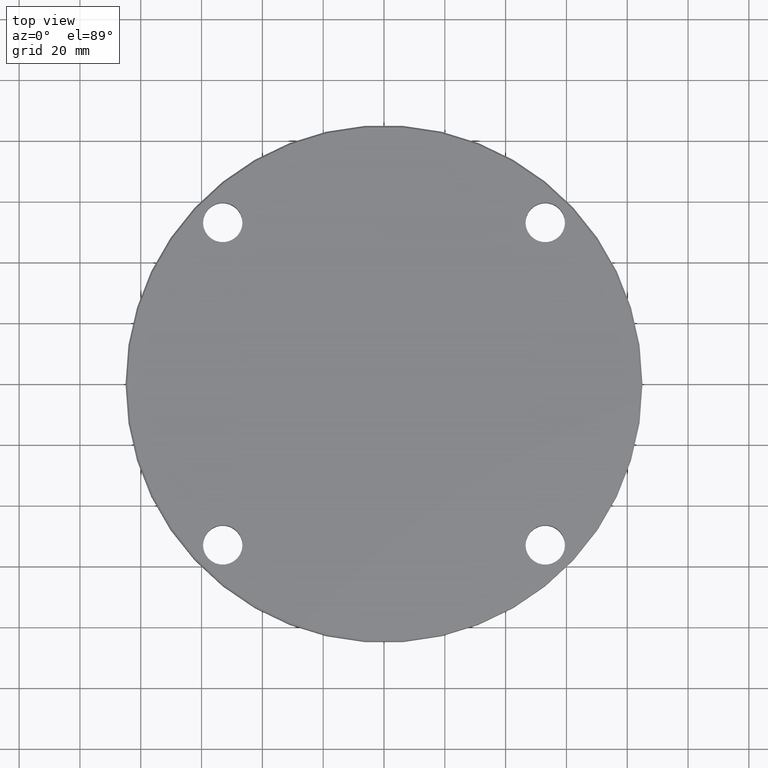
[diagram: clean part render]
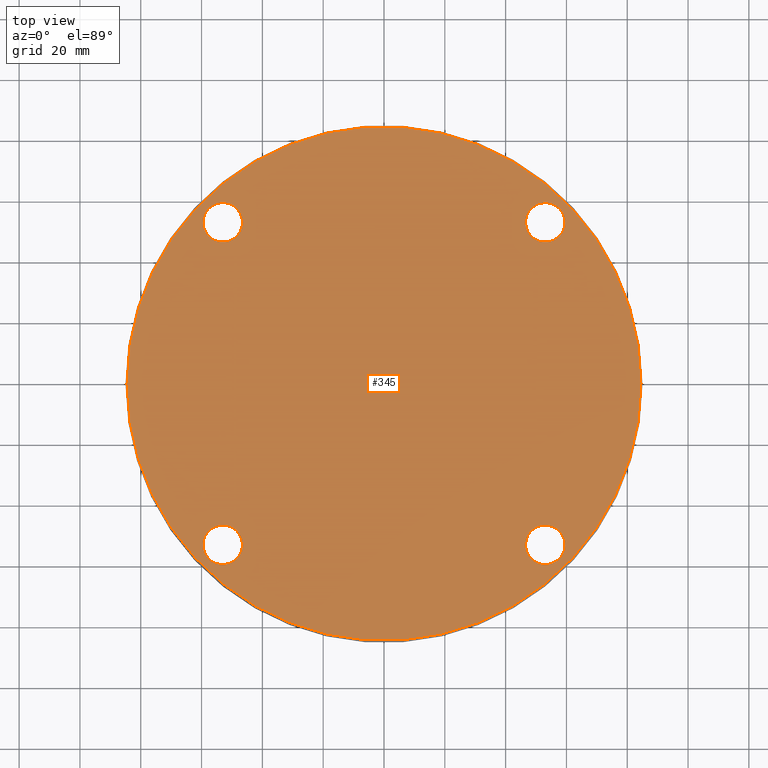
[diagram: same view with one face highlighted and labeled with its STEP entity id]
A machine part, top view. The second image highlights one B-rep face of the part: STEP entity #345.
In plain terms, the highlighted planar face has unit normal (0, 0, 1).
Its self-contained STEP definition (entity closure, byte-faithful):
#6 = DIRECTION ( 'NONE',  ( 0.000000000000000000, 0.000000000000000000, 1.000000000000000000 ) ) ;
#7 = CARTESIAN_POINT ( 'NONE',  ( -46.53300858899115866, 53.03300858899095971, 15.00000000000000000 ) ) ;
#17 = EDGE_CURVE ( 'NONE', #290, #357, #483, .T. ) ;
#34 = AXIS2_PLACEMENT_3D ( 'NONE', #499, #396, #535 ) ;
#37 = DIRECTION ( 'NONE',  ( -0.000000000000000000, -0.000000000000000000, 1.000000000000000000 ) ) ;
#40 = CARTESIAN_POINT ( 'NONE',  ( -53.03300858899114445, -53.03300858899096681, 15.00000000000000000 ) ) ;
#43 = CARTESIAN_POINT ( 'NONE',  ( -84.49999999999998579, 0.000000000000000000, 15.00000000000000000 ) ) ;
#45 = CIRCLE ( 'NONE', #374, 84.49999999999998579 ) ;
#49 = DIRECTION ( 'NONE',  ( 1.000000000000000000, 0.000000000000000000, 0.000000000000000000 ) ) ;
#50 = DIRECTION ( 'NONE',  ( 0.000000000000000000, 0.000000000000000000, 1.000000000000000000 ) ) ;
#53 = CIRCLE ( 'NONE', #304, 84.49999999999998579 ) ;
#55 = EDGE_CURVE ( 'NONE', #176, #548, #219, .T. ) ;
#57 = EDGE_CURVE ( 'NONE', #371, #569, #544, .T. ) ;
#72 = FACE_BOUND ( 'NONE', #82, .T. ) ;
#76 = EDGE_CURVE ( 'NONE', #424, #530, #45, .T. ) ;
#78 = DIRECTION ( 'NONE',  ( 1.000000000000000000, 0.000000000000000000, 0.000000000000000000 ) ) ;
#82 = EDGE_LOOP ( 'NONE', ( #161, #109 ) ) ;
#93 = CARTESIAN_POINT ( 'NONE',  ( -59.53300858899114445, -53.03300858899096681, 15.00000000000000000 ) ) ;
#107 = AXIS2_PLACEMENT_3D ( 'NONE', #40, #170, #444 ) ;
#109 = ORIENTED_EDGE ( 'NONE', *, *, #55, .F. ) ;
#114 = FACE_BOUND ( 'NONE', #478, .T. ) ;
#120 = CARTESIAN_POINT ( 'NONE',  ( 53.03300858899152104, -53.03300858899059023, 15.00000000000000000 ) ) ;
#123 = CARTESIAN_POINT ( 'NONE',  ( 53.03300858899114445, 53.03300858899096681, 15.00000000000000000 ) ) ;
#132 = CIRCLE ( 'NONE', #107, 6.499999999999999112 ) ;
#133 = CARTESIAN_POINT ( 'NONE',  ( 53.03300858899114445, 53.03300858899096681, 15.00000000000000000 ) ) ;
#144 = AXIS2_PLACEMENT_3D ( 'NONE', #120, #37, #78 ) ;
#161 = ORIENTED_EDGE ( 'NONE', *, *, #363, .F. ) ;
#162 = DIRECTION ( 'NONE',  ( 0.000000000000000000, 0.000000000000000000, 1.000000000000000000 ) ) ;
#164 = VERTEX_POINT ( 'NONE', #93 ) ;
#166 = DIRECTION ( 'NONE',  ( 1.000000000000000000, 0.000000000000000000, 0.000000000000000000 ) ) ;
#167 = EDGE_LOOP ( 'NONE', ( #533, #560 ) ) ;
#168 = CARTESIAN_POINT ( 'NONE',  ( -53.03300858899115156, 53.03300858899095971, 15.00000000000000000 ) ) ;
#170 = DIRECTION ( 'NONE',  ( -0.000000000000000000, -0.000000000000000000, 1.000000000000000000 ) ) ;
#175 = DIRECTION ( 'NONE',  ( 1.000000000000000000, 0.000000000000000000, 0.000000000000000000 ) ) ;
#176 = VERTEX_POINT ( 'NONE', #243 ) ;
#183 = AXIS2_PLACEMENT_3D ( 'NONE', #133, #233, #175 ) ;
#193 = CIRCLE ( 'NONE', #183, 6.499999999999999112 ) ;
#196 = VERTEX_POINT ( 'NONE', #555 ) ;
#206 = EDGE_LOOP ( 'NONE', ( #566, #513 ) ) ;
#208 = ORIENTED_EDGE ( 'NONE', *, *, #262, .F. ) ;
#209 = CARTESIAN_POINT ( 'NONE',  ( 0.000000000000000000, 0.000000000000000000, 15.00000000000000000 ) ) ;
#215 = FACE_BOUND ( 'NONE', #294, .T. ) ;
#219 = CIRCLE ( 'NONE', #34, 6.499999999999999112 ) ;
#220 = DIRECTION ( 'NONE',  ( 1.000000000000000000, 0.000000000000000000, 0.000000000000000000 ) ) ;
#224 = DIRECTION ( 'NONE',  ( -0.000000000000000000, -0.000000000000000000, 1.000000000000000000 ) ) ;
#225 = DIRECTION ( 'NONE',  ( 1.000000000000000000, 0.000000000000000000, 0.000000000000000000 ) ) ;
#233 = DIRECTION ( 'NONE',  ( -0.000000000000000000, -0.000000000000000000, 1.000000000000000000 ) ) ;
#236 = AXIS2_PLACEMENT_3D ( 'NONE', #488, #297, #559 ) ;
#243 = CARTESIAN_POINT ( 'NONE',  ( -59.53300858899115156, 53.03300858899095971, 15.00000000000000000 ) ) ;
#253 = PLANE ( 'NONE',  #312 ) ;
#255 = CARTESIAN_POINT ( 'NONE',  ( 59.53300858899114445, 53.03300858899096681, 15.00000000000000000 ) ) ;
#259 = ORIENTED_EDGE ( 'NONE', *, *, #319, .F. ) ;
#262 = EDGE_CURVE ( 'NONE', #569, #371, #302, .T. ) ;
#265 = DIRECTION ( 'NONE',  ( -0.000000000000000000, -0.000000000000000000, 1.000000000000000000 ) ) ;
#281 = ORIENTED_EDGE ( 'NONE', *, *, #57, .F. ) ;
#290 = VERTEX_POINT ( 'NONE', #255 ) ;
#291 = AXIS2_PLACEMENT_3D ( 'NONE', #453, #224, #220 ) ;
#294 = EDGE_LOOP ( 'NONE', ( #259, #468 ) ) ;
#297 = DIRECTION ( 'NONE',  ( -0.000000000000000000, -0.000000000000000000, 1.000000000000000000 ) ) ;
#302 = CIRCLE ( 'NONE', #144, 6.499999999999999112 ) ;
#304 = AXIS2_PLACEMENT_3D ( 'NONE', #209, #50, #225 ) ;
#306 = EDGE_CURVE ( 'NONE', #164, #196, #495, .T. ) ;
#307 = DIRECTION ( 'NONE',  ( -0.000000000000000000, -0.000000000000000000, 1.000000000000000000 ) ) ;
#312 = AXIS2_PLACEMENT_3D ( 'NONE', #481, #162, #346 ) ;
#319 = EDGE_CURVE ( 'NONE', #196, #164, #132, .T. ) ;
#331 = CIRCLE ( 'NONE', #408, 6.499999999999999112 ) ;
#341 = FACE_BOUND ( 'NONE', #206, .T. ) ;
#345 = ADVANCED_FACE ( 'NONE', ( #393, #114, #215, #72, #341 ), #253, .T. ) ;
#346 = DIRECTION ( 'NONE',  ( 1.000000000000000000, 0.000000000000000000, -0.000000000000000000 ) ) ;
#357 = VERTEX_POINT ( 'NONE', #568 ) ;
#359 = AXIS2_PLACEMENT_3D ( 'NONE', #123, #265, #361 ) ;
#361 = DIRECTION ( 'NONE',  ( 1.000000000000000000, 0.000000000000000000, 0.000000000000000000 ) ) ;
#363 = EDGE_CURVE ( 'NONE', #548, #176, #331, .T. ) ;
#371 = VERTEX_POINT ( 'NONE', #571 ) ;
#374 = AXIS2_PLACEMENT_3D ( 'NONE', #400, #6, #49 ) ;
#393 = FACE_OUTER_BOUND ( 'NONE', #167, .T. ) ;
#396 = DIRECTION ( 'NONE',  ( -0.000000000000000000, -0.000000000000000000, 1.000000000000000000 ) ) ;
#400 = CARTESIAN_POINT ( 'NONE',  ( 0.000000000000000000, 0.000000000000000000, 15.00000000000000000 ) ) ;
#401 = CARTESIAN_POINT ( 'NONE',  ( 84.49999999999998579, 1.037888162277381958E-14, 15.00000000000000000 ) ) ;
#408 = AXIS2_PLACEMENT_3D ( 'NONE', #168, #307, #166 ) ;
#415 = CARTESIAN_POINT ( 'NONE',  ( 59.53300858899152104, -53.03300858899059023, 15.00000000000000000 ) ) ;
#424 = VERTEX_POINT ( 'NONE', #43 ) ;
#432 = EDGE_CURVE ( 'NONE', #530, #424, #53, .T. ) ;
#444 = DIRECTION ( 'NONE',  ( 1.000000000000000000, 0.000000000000000000, 0.000000000000000000 ) ) ;
#453 = CARTESIAN_POINT ( 'NONE',  ( 53.03300858899152104, -53.03300858899059023, 15.00000000000000000 ) ) ;
#468 = ORIENTED_EDGE ( 'NONE', *, *, #306, .F. ) ;
#478 = EDGE_LOOP ( 'NONE', ( #208, #281 ) ) ;
#481 = CARTESIAN_POINT ( 'NONE',  ( 0.000000000000000000, 0.000000000000000000, 15.00000000000000000 ) ) ;
#483 = CIRCLE ( 'NONE', #359, 6.499999999999999112 ) ;
#488 = CARTESIAN_POINT ( 'NONE',  ( -53.03300858899114445, -53.03300858899096681, 15.00000000000000000 ) ) ;
#495 = CIRCLE ( 'NONE', #236, 6.499999999999999112 ) ;
#499 = CARTESIAN_POINT ( 'NONE',  ( -53.03300858899115156, 53.03300858899095971, 15.00000000000000000 ) ) ;
#513 = ORIENTED_EDGE ( 'NONE', *, *, #547, .F. ) ;
#530 = VERTEX_POINT ( 'NONE', #401 ) ;
#533 = ORIENTED_EDGE ( 'NONE', *, *, #76, .T. ) ;
#535 = DIRECTION ( 'NONE',  ( 1.000000000000000000, 0.000000000000000000, 0.000000000000000000 ) ) ;
#544 = CIRCLE ( 'NONE', #291, 6.499999999999999112 ) ;
#547 = EDGE_CURVE ( 'NONE', #357, #290, #193, .T. ) ;
#548 = VERTEX_POINT ( 'NONE', #7 ) ;
#555 = CARTESIAN_POINT ( 'NONE',  ( -46.53300858899115156, -53.03300858899096681, 15.00000000000000000 ) ) ;
#559 = DIRECTION ( 'NONE',  ( 1.000000000000000000, 0.000000000000000000, 0.000000000000000000 ) ) ;
#560 = ORIENTED_EDGE ( 'NONE', *, *, #432, .T. ) ;
#566 = ORIENTED_EDGE ( 'NONE', *, *, #17, .F. ) ;
#568 = CARTESIAN_POINT ( 'NONE',  ( 46.53300858899115156, 53.03300858899096681, 15.00000000000000000 ) ) ;
#569 = VERTEX_POINT ( 'NONE', #415 ) ;
#571 = CARTESIAN_POINT ( 'NONE',  ( 46.53300858899152104, -53.03300858899059023, 15.00000000000000000 ) ) ;